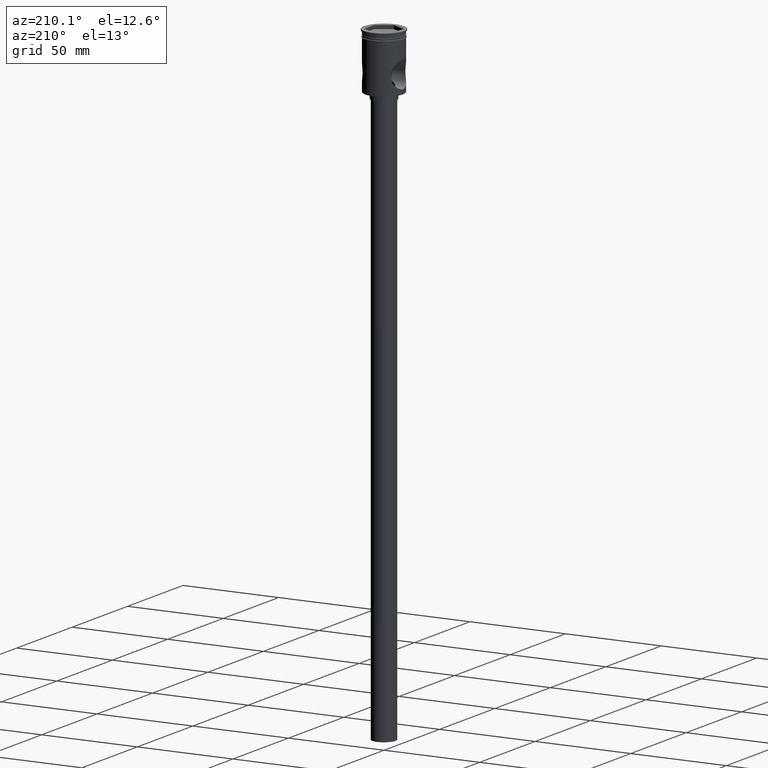
[diagram: clean part render]
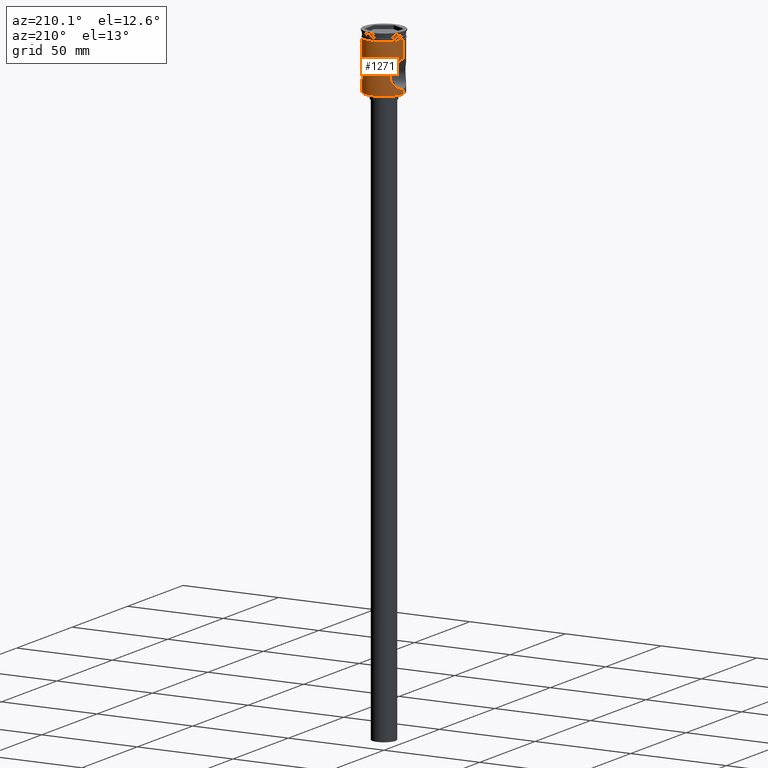
[diagram: same view with one face highlighted and labeled with its STEP entity id]
A machine part, auxiliary view. The second image highlights one B-rep face of the part: STEP entity #1271.
In plain terms, the highlighted cylindrical surface (edge-blend (fillet) strip) has radius 10 mm, axis along (-0, -0, 1).
Its self-contained STEP definition (entity closure, byte-faithful):
#38 = ORIENTED_EDGE ( 'NONE', *, *, #1147, .F. ) ;
#40 = CARTESIAN_POINT ( 'NONE',  ( -7.377383315084117932, 6.751497144694277530, -18.13709901651008494 ) ) ;
#55 = CARTESIAN_POINT ( 'NONE',  ( -9.999999999999994671, 1.224646799147352665E-15, 0.000000000000000000 ) ) ;
#78 = B_SPLINE_CURVE_WITH_KNOTS ( 'NONE', 3,
 ( #1197, #644, #155, #201, #1502, #635, #1248, #1093, #1443, #1116, #1218, #673, #399, #879, #1146, #1000, #1323, #535, #512, #40, #90, #145, #1108, #1470, #522, #1100, #1333, #746, #629, #992, #1461, #978, #416, #1349, #408, #620, #1450, #873, #852, #1343, #284, #290, #558, #864, #728, #762 ),
 .UNSPECIFIED., .F., .F.,
 ( 4, 2, 2, 2, 2, 2, 2, 2, 2, 2, 2, 2, 2, 2, 2, 2, 2, 2, 2, 2, 2, 2, 4 ),
 ( 0.02273717132267112292, 0.02344677004960169994, 0.02415636877653227696, 0.02557556623039343099, 0.02699476368425458156, 0.02841396113811573559, 0.02983315859197688963, 0.03054275731890747012, 0.03125235604583804366, 0.03196195477276862762, 0.03267155349969920464, 0.03409075095356035867, 0.03550994840742151271, 0.03621954713435208278, 0.03692914586128265980, 0.03763874458821323682, 0.03834834331514381384, 0.03976754076900496787, 0.04118673822286612884, 0.04260593567672728288, 0.04331553440365785990, 0.04402513313058842997, 0.04544433058444957707 ),
 .UNSPECIFIED. ) ;
#82 = CARTESIAN_POINT ( 'NONE',  ( 9.735967975428478027, 2.325336189795355502, -13.38128717480536345 ) ) ;
#90 = CARTESIAN_POINT ( 'NONE',  ( -7.322655419112948927, 6.810500286563438976, -18.36528137380275538 ) ) ;
#91 = CARTESIAN_POINT ( 'NONE',  ( 8.857763224790600631, 4.655166966848104160, -14.75332674821394185 ) ) ;
#99 = CARTESIAN_POINT ( 'NONE',  ( 7.495754172928653425, 6.623269820279323206, -17.68917710553390421 ) ) ;
#104 = CIRCLE ( 'NONE', #1509, 9.999999999999994671 ) ;
#134 = LINE ( 'NONE', #946, #323 ) ;
#135 = VERTEX_POINT ( 'NONE', #1013 ) ;
#145 = CARTESIAN_POINT ( 'NONE',  ( -7.189382404875349408, 6.951946978929631094, -19.05590796920064633 ) ) ;
#151 = ORIENTED_EDGE ( 'NONE', *, *, #795, .T. ) ;
#155 = CARTESIAN_POINT ( 'NONE',  ( -9.991596185262174856, 0.4736682493084680701, -13.01198930438258117 ) ) ;
#164 = EDGE_CURVE ( 'NONE', #135, #844, #104, .T. ) ;
#187 = CARTESIAN_POINT ( 'NONE',  ( 0.000000000000000000, 0.000000000000000000, 0.000000000000000000 ) ) ;
#195 = CARTESIAN_POINT ( 'NONE',  ( 9.834047061028444503, 1.872933838790287631, -26.76115115372198616 ) ) ;
#201 = CARTESIAN_POINT ( 'NONE',  ( -9.957864273581446213, 0.9472565907286251141, -13.06030547907275796 ) ) ;
#203 = CARTESIAN_POINT ( 'NONE',  ( 7.967226261725709691, 6.044961550507583325, -16.46329765270407108 ) ) ;
#210 = CARTESIAN_POINT ( 'NONE',  ( 9.957729828106900882, 0.9487746701410815220, -13.06049825370512707 ) ) ;
#284 = CARTESIAN_POINT ( 'NONE',  ( -9.730782946235683184, 2.316105786581691639, -26.60989879506474054 ) ) ;
#288 = DIRECTION ( 'NONE',  ( -0.000000000000000000, -0.000000000000000000, 1.000000000000000000 ) ) ;
#290 = CARTESIAN_POINT ( 'NONE',  ( -9.826638545464753349, 1.868062541291059642, -26.75021854738501759 ) ) ;
#296 = DIRECTION ( 'NONE',  ( 1.000000000000000000, 0.000000000000000000, 0.000000000000000000 ) ) ;
#313 = CARTESIAN_POINT ( 'NONE',  ( 7.720495804876724044, 6.356685689900112735, -17.05985571267803991 ) ) ;
#323 = VECTOR ( 'NONE', #1097, 1000.000000000000000 ) ;
#335 = CARTESIAN_POINT ( 'NONE',  ( 9.999999999999998224, 0.000000000000000000, -3.999999999999996447 ) ) ;
#338 = CARTESIAN_POINT ( 'NONE',  ( 9.999999999999994671, -5.133226810943367768E-18, -13.00000000000000355 ) ) ;
#340 = CARTESIAN_POINT ( 'NONE',  ( 7.236111701560244747, 6.902383710959966834, -21.18811620976742915 ) ) ;
#344 = CYLINDRICAL_SURFACE ( 'NONE', #714, 9.999999999999994671 ) ;
#348 = CARTESIAN_POINT ( 'NONE',  ( 0.000000000000000000, 0.000000000000000000, -3.999999999999996447 ) ) ;
#349 = EDGE_CURVE ( 'NONE', #135, #1132, #1385, .T. ) ;
#356 = VERTEX_POINT ( 'NONE', #1260 ) ;
#399 = CARTESIAN_POINT ( 'NONE',  ( -8.315544161946238688, 5.562748588078728851, -15.72768175892419862 ) ) ;
#408 = CARTESIAN_POINT ( 'NONE',  ( -8.503943671969903306, 5.273689396165736731, -24.62422230267287304 ) ) ;
#416 = CARTESIAN_POINT ( 'NONE',  ( -8.056358060451357161, 5.926078000082595665, -23.73242365119358155 ) ) ;
#428 = DIRECTION ( 'NONE',  ( -0.000000000000000000, -0.000000000000000000, 1.000000000000000000 ) ) ;
#446 = CARTESIAN_POINT ( 'NONE',  ( 9.343068346694408888, 3.570972421456893642, -13.97506645596566877 ) ) ;
#453 = DIRECTION ( 'NONE',  ( -0.000000000000000000, -0.000000000000000000, 1.000000000000000000 ) ) ;
#500 = VERTEX_POINT ( 'NONE', #821 ) ;
#512 = CARTESIAN_POINT ( 'NONE',  ( -7.500597748671954612, 6.614342876288898054, -17.69704926583546722 ) ) ;
#518 = ORIENTED_EDGE ( 'NONE', *, *, #349, .F. ) ;
#522 = CARTESIAN_POINT ( 'NONE',  ( -7.191763660842745765, 6.949507115151161152, -20.96152780032075569 ) ) ;
#535 = CARTESIAN_POINT ( 'NONE',  ( -7.569330506494653221, 6.535933251526299337, -17.48356472559870411 ) ) ;
#555 = CARTESIAN_POINT ( 'NONE',  ( 9.999999999999994671, 0.000000000000000000, -27.00000000000001066 ) ) ;
#557 = ORIENTED_EDGE ( 'NONE', *, *, #164, .T. ) ;
#558 = CARTESIAN_POINT ( 'NONE',  ( -9.867116120145130509, 1.641278058953928198, -26.80890176429204885 ) ) ;
#565 = CARTESIAN_POINT ( 'NONE',  ( 9.999999999999996447, 0.2371603752032602208, -13.00000000000000711 ) ) ;
#571 = EDGE_CURVE ( 'NONE', #356, #500, #78, .T. ) ;
#575 = CARTESIAN_POINT ( 'NONE',  ( 8.315624236750037923, 5.562535070965512141, -24.27231501587448292 ) ) ;
#577 = CARTESIAN_POINT ( 'NONE',  ( 9.999999999999994671, 0.000000000000000000, 0.000000000000000000 ) ) ;
#578 = DIRECTION ( 'NONE',  ( -0.000000000000000000, -0.000000000000000000, 1.000000000000000000 ) ) ;
#585 = CARTESIAN_POINT ( 'NONE',  ( 7.325106434378655607, 6.807865243658028476, -21.64544578927129237 ) ) ;
#587 = CARTESIAN_POINT ( 'NONE',  ( 9.999999999999994671, 0.000000000000000000, -27.00000000000001066 ) ) ;
#591 = VERTEX_POINT ( 'NONE', #1035 ) ;
#620 = CARTESIAN_POINT ( 'NONE',  ( -8.860185483737918588, 4.650373212660217526, -25.25064384002004658 ) ) ;
#629 = CARTESIAN_POINT ( 'NONE',  ( -7.574535355013248150, 6.529908853628296761, -22.53201108648862316 ) ) ;
#635 = CARTESIAN_POINT ( 'NONE',  ( -9.832878540591766026, 1.879722866531852610, -13.24054240779419089 ) ) ;
#644 = CARTESIAN_POINT ( 'NONE',  ( -9.999999999999992895, 0.2368473339933030442, -13.00000000000000355 ) ) ;
#649 = CARTESIAN_POINT ( 'NONE',  ( 0.000000000000000000, 0.000000000000000000, -29.30000000000000071 ) ) ;
#655 = CARTESIAN_POINT ( 'NONE',  ( -10.00000000000000000, 1.224646799147353256E-15, -3.999999999999996447 ) ) ;
#673 = CARTESIAN_POINT ( 'NONE',  ( -8.497179343882921287, 5.284524261307590010, -15.38819392766633243 ) ) ;
#684 = FACE_OUTER_BOUND ( 'NONE', #1436, .T. ) ;
#687 = CARTESIAN_POINT ( 'NONE',  ( 7.199668910925416832, 6.940164191266630311, -19.05657392165621289 ) ) ;
#714 = AXIS2_PLACEMENT_3D ( 'NONE', #187, #1367, #296 ) ;
#728 = CARTESIAN_POINT ( 'NONE',  ( -9.999999999999998224, 0.4807969081117817733, -27.00000000000001066 ) ) ;
#746 = CARTESIAN_POINT ( 'NONE',  ( -7.505468983612143319, 6.608824641700789648, -22.31875249157933183 ) ) ;
#762 = CARTESIAN_POINT ( 'NONE',  ( -9.999999999999996447, 0.000000000000000000, -27.00000000000000355 ) ) ;
#778 = CARTESIAN_POINT ( 'NONE',  ( 9.553141715981873006, 2.964211287661889571, -13.65436461758242181 ) ) ;
#780 = DIRECTION ( 'NONE',  ( 1.000000000000000000, 0.000000000000000000, 0.000000000000000000 ) ) ;
#786 = ORIENTED_EDGE ( 'NONE', *, *, #1191, .F. ) ;
#787 = CARTESIAN_POINT ( 'NONE',  ( 7.153700441637879770, 6.987541224765998926, -20.48080140017840733 ) ) ;
#790 = CARTESIAN_POINT ( 'NONE',  ( 9.999999999999994671, 0.4814323775651360160, -27.00000000000000711 ) ) ;
#795 = EDGE_CURVE ( 'NONE', #356, #1003, #134, .T. ) ;
#809 = CARTESIAN_POINT ( 'NONE',  ( 7.234464554488559962, 6.904114004842417884, -18.82145945963317857 ) ) ;
#821 = CARTESIAN_POINT ( 'NONE',  ( -9.999999999999996447, 0.000000000000000000, -27.00000000000000355 ) ) ;
#830 = VECTOR ( 'NONE', #453, 1000.000000000000000 ) ;
#844 = VERTEX_POINT ( 'NONE', #1294 ) ;
#852 = CARTESIAN_POINT ( 'NONE',  ( -9.494221684495640190, 3.170672659151728912, -26.25765240908376441 ) ) ;
#864 = CARTESIAN_POINT ( 'NONE',  ( -9.965325511264431668, 0.9525671816038204787, -26.95070955909274346 ) ) ;
#871 = EDGE_CURVE ( 'NONE', #844, #500, #1023, .T. ) ;
#873 = CARTESIAN_POINT ( 'NONE',  ( -9.351609315107900500, 3.564938189428367377, -26.04074502495870647 ) ) ;
#879 = CARTESIAN_POINT ( 'NONE',  ( -8.050554706296177088, 5.933943087171876130, -16.28011583648020988 ) ) ;
#899 = CARTESIAN_POINT ( 'NONE',  ( 7.573222039985391341, 6.531435267832768510, -22.52812481744788897 ) ) ;
#901 = CARTESIAN_POINT ( 'NONE',  ( 9.349377247001186220, 3.571280898155820172, -26.03738208151085587 ) ) ;
#908 = CARTESIAN_POINT ( 'NONE',  ( 7.796463043157196182, 6.266459839169562507, -23.15209899686185224 ) ) ;
#918 = CARTESIAN_POINT ( 'NONE',  ( 9.832512437962645180, 1.881659858244550509, -13.24107387809922898 ) ) ;
#924 = CARTESIAN_POINT ( 'NONE',  ( 9.485754788391535186, 3.172574074835096791, -13.75608760595409663 ) ) ;
#946 = CARTESIAN_POINT ( 'NONE',  ( -9.999999999999994671, 1.224646799147352665E-15, 0.000000000000000000 ) ) ;
#978 = CARTESIAN_POINT ( 'NONE',  ( -7.969012120586809189, 6.042611853496009822, -23.54072391938827735 ) ) ;
#989 = CIRCLE ( 'NONE', #1301, 9.999999999999998224 ) ;
#992 = CARTESIAN_POINT ( 'NONE',  ( -7.723089038241832682, 6.353518016691833914, -22.94679462982522722 ) ) ;
#1000 = CARTESIAN_POINT ( 'NONE',  ( -7.796802139286405087, 6.263237125868982069, -16.86600156342442602 ) ) ;
#1003 = VERTEX_POINT ( 'NONE', #655 ) ;
#1013 = CARTESIAN_POINT ( 'NONE',  ( 9.999999999999994671, 0.000000000000000000, -29.30000000000000071 ) ) ;
#1016 = CARTESIAN_POINT ( 'NONE',  ( 8.316470757484857756, 5.561257273121390732, -15.72607428983809008 ) ) ;
#1018 = EDGE_CURVE ( 'NONE', #591, #1235, #1478, .T. ) ;
#1023 = LINE ( 'NONE', #55, #1484 ) ;
#1026 = CARTESIAN_POINT ( 'NONE',  ( 8.500359578522527215, 5.279417043634754947, -24.61763755135371312 ) ) ;
#1029 = CARTESIAN_POINT ( 'NONE',  ( 9.735585976469911529, 2.326309258653758594, -26.61812786508321693 ) ) ;
#1035 = CARTESIAN_POINT ( 'NONE',  ( 9.999999999999994671, -5.133226810943367768E-18, -13.00000000000000355 ) ) ;
#1042 = CARTESIAN_POINT ( 'NONE',  ( 8.498707828545162712, 5.282283036785497821, -15.38527946463393370 ) ) ;
#1056 = CARTESIAN_POINT ( 'NONE',  ( 7.368839572955796058, 6.761454996973014886, -18.12764364703029329 ) ) ;
#1093 = CARTESIAN_POINT ( 'NONE',  ( -9.492393824703034610, 3.176669941205828795, -13.74509325342724253 ) ) ;
#1097 = DIRECTION ( 'NONE',  ( -0.000000000000000000, -0.000000000000000000, 1.000000000000000000 ) ) ;
#1100 = CARTESIAN_POINT ( 'NONE',  ( -7.326263957022342233, 6.806624336356017935, -21.65073055260620905 ) ) ;
#1108 = CARTESIAN_POINT ( 'NONE',  ( -7.140877080678154520, 7.000562488098499792, -19.52635574343557323 ) ) ;
#1112 = DIRECTION ( 'NONE',  ( -0.000000000000000000, -0.000000000000000000, 1.000000000000000000 ) ) ;
#1116 = CARTESIAN_POINT ( 'NONE',  ( -9.028965068475375944, 4.317457269925931485, -14.47181101200376574 ) ) ;
#1127 = CARTESIAN_POINT ( 'NONE',  ( 9.999999999999994671, 0.000000000000000000, 0.000000000000000000 ) ) ;
#1132 = VERTEX_POINT ( 'NONE', #555 ) ;
#1146 = CARTESIAN_POINT ( 'NONE',  ( -7.963207023572478782, 6.050255927956311730, -16.47232531239752262 ) ) ;
#1147 = EDGE_CURVE ( 'NONE', #1235, #1003, #989, .T. ) ;
#1153 = CARTESIAN_POINT ( 'NONE',  ( 7.964400624432384390, 6.054727537725132613, -23.54044438658495508 ) ) ;
#1191 = EDGE_CURVE ( 'NONE', #1132, #591, #1405, .T. ) ;
#1197 = CARTESIAN_POINT ( 'NONE',  ( -9.999999999999994671, 1.229780025839397734E-15, -13.00000000000000355 ) ) ;
#1214 = ORIENTED_EDGE ( 'NONE', *, *, #871, .T. ) ;
#1218 = CARTESIAN_POINT ( 'NONE',  ( -8.853430568094132980, 4.663155653245508070, -14.76073180007297125 ) ) ;
#1235 = VERTEX_POINT ( 'NONE', #335 ) ;
#1241 = CARTESIAN_POINT ( 'NONE',  ( 7.801002067758135539, 6.258004569467825462, -16.85560777748649386 ) ) ;
#1244 = CARTESIAN_POINT ( 'NONE',  ( 9.965446655919850016, 0.9519641332654187327, -26.95088558220736630 ) ) ;
#1248 = CARTESIAN_POINT ( 'NONE',  ( -9.736384942666980180, 2.323699784143521185, -13.38067151163704871 ) ) ;
#1252 = CARTESIAN_POINT ( 'NONE',  ( 7.141373392009660925, 7.000056148497767694, -19.76373034873126144 ) ) ;
#1257 = CARTESIAN_POINT ( 'NONE',  ( 9.932071413309429886, 1.186883990593142979, -13.09730212679606964 ) ) ;
#1260 = CARTESIAN_POINT ( 'NONE',  ( -9.999999999999994671, 1.229780025839397734E-15, -13.00000000000000355 ) ) ;
#1268 = CARTESIAN_POINT ( 'NONE',  ( 7.379165411094851912, 6.749558967525724817, -21.87002777218119931 ) ) ;
#1271 = ADVANCED_FACE ( 'NONE', ( #684 ), #344, .T. ) ;
#1290 = ORIENTED_EDGE ( 'NONE', *, *, #571, .F. ) ;
#1294 = CARTESIAN_POINT ( 'NONE',  ( -9.999999999999994671, 1.224646799147352665E-15, -29.30000000000000071 ) ) ;
#1301 = AXIS2_PLACEMENT_3D ( 'NONE', #348, #578, #780 ) ;
#1323 = CARTESIAN_POINT ( 'NONE',  ( -7.717429328536875133, 6.360383034377457001, -17.06803860621227287 ) ) ;
#1333 = CARTESIAN_POINT ( 'NONE',  ( -7.381411116935110428, 6.747102913955162151, -21.87877048370861743 ) ) ;
#1343 = CARTESIAN_POINT ( 'NONE',  ( -9.675488818793542833, 2.536388918100093370, -26.52836702033825489 ) ) ;
#1349 = CARTESIAN_POINT ( 'NONE',  ( -8.322069302564289117, 5.553051878775062455, -24.28499264081531095 ) ) ;
#1351 = ORIENTED_EDGE ( 'NONE', *, *, #1018, .F. ) ;
#1364 = CARTESIAN_POINT ( 'NONE',  ( 9.267396788860448709, 3.762388530127553476, -14.09286872329777474 ) ) ;
#1365 = CARTESIAN_POINT ( 'NONE',  ( 8.856372138511654057, 4.657577678256724418, -25.24421500772974269 ) ) ;
#1367 = DIRECTION ( 'NONE',  ( -0.000000000000000000, -0.000000000000000000, 1.000000000000000000 ) ) ;
#1375 = CARTESIAN_POINT ( 'NONE',  ( 9.029024665842507957, 4.317593744654971033, -25.52832831042054806 ) ) ;
#1385 = LINE ( 'NONE', #577, #830 ) ;
#1391 = CARTESIAN_POINT ( 'NONE',  ( 9.991574020215791663, 0.4743472386555617204, -13.01202085301403777 ) ) ;
#1392 = CARTESIAN_POINT ( 'NONE',  ( 7.503273641266415162, 6.611317046147628496, -22.31171733569519944 ) ) ;
#1400 = CARTESIAN_POINT ( 'NONE',  ( 7.153235015771536531, 6.988014041043824953, -19.52714534028610061 ) ) ;
#1405 = B_SPLINE_CURVE_WITH_KNOTS ( 'NONE', 3,
 ( #587, #790, #1244, #195, #1029, #1497, #901, #1375, #1365, #1026, #575, #1153, #908, #899, #1392, #1268, #585, #340, #1520, #787, #1503, #1252, #1400, #687, #809, #1056, #99, #313, #1241, #203, #1488, #1016, #1042, #91, #1519, #1364, #446, #924, #778, #82, #918, #1257, #210, #1391, #565, #338 ),
 .UNSPECIFIED., .F., .F.,
 ( 4, 2, 2, 2, 2, 2, 2, 2, 2, 2, 2, 2, 2, 2, 2, 2, 2, 2, 2, 2, 2, 2, 4 ),
 ( 0.000000000000000000, 0.001421073207666945183, 0.002842146415333890366, 0.004263219623000837066, 0.005684292830667782466, 0.007105366038334726998, 0.008526439246001672398, 0.009236975849835149868, 0.009947512453668627339, 0.01065804905750210654, 0.01136858566133558401, 0.01207912226516906322, 0.01278965886900253895, 0.01421073207666949390, 0.01492126868050296790, 0.01563180528433644190, 0.01705287849200338296, 0.01847395169967032749, 0.01918448830350380149, 0.01989502490733727202, 0.02131609811500421309, 0.02202663471883768362, 0.02273717132267115415 ),
 .UNSPECIFIED. ) ;
#1409 = VECTOR ( 'NONE', #428, 1000.000000000000000 ) ;
#1436 = EDGE_LOOP ( 'NONE', ( #557, #1214, #1290, #151, #38, #1351, #786, #518 ) ) ;
#1443 = CARTESIAN_POINT ( 'NONE',  ( -9.347318963212909892, 3.576349491498996613, -13.96584429441086250 ) ) ;
#1450 = CARTESIAN_POINT ( 'NONE',  ( -9.035512705743391493, 4.303590503429356673, -25.53881697926559013 ) ) ;
#1461 = CARTESIAN_POINT ( 'NONE',  ( -7.802583678074495488, 6.256037095215747357, -23.14831442975813403 ) ) ;
#1470 = CARTESIAN_POINT ( 'NONE',  ( -7.141989287018506438, 6.999427809131203659, -20.49012689816927946 ) ) ;
#1478 = LINE ( 'NONE', #1127, #1409 ) ;
#1481 = DIRECTION ( 'NONE',  ( -1.000000000000000000, 0.000000000000000000, 0.000000000000000000 ) ) ;
#1484 = VECTOR ( 'NONE', #288, 1000.000000000000000 ) ;
#1488 = CARTESIAN_POINT ( 'NONE',  ( 8.053311715077979827, 5.930176009131115755, -16.27420902905398137 ) ) ;
#1497 = CARTESIAN_POINT ( 'NONE',  ( 9.493823586986472662, 3.171854784083770085, -26.25704949909892250 ) ) ;
#1502 = CARTESIAN_POINT ( 'NONE',  ( -9.932287513067288742, 1.185065133237715562, -13.09699146176595974 ) ) ;
#1503 = CARTESIAN_POINT ( 'NONE',  ( 7.141483849871202771, 6.999943458932625262, -20.23958506209359243 ) ) ;
#1509 = AXIS2_PLACEMENT_3D ( 'NONE', #649, #1112, #1481 ) ;
#1519 = CARTESIAN_POINT ( 'NONE',  ( 9.029975738911995009, 4.315133941133939999, -14.47019995321800323 ) ) ;
#1520 = CARTESIAN_POINT ( 'NONE',  ( 7.201179731105407100, 6.938600208746065867, -20.95536877560809330 ) ) ;